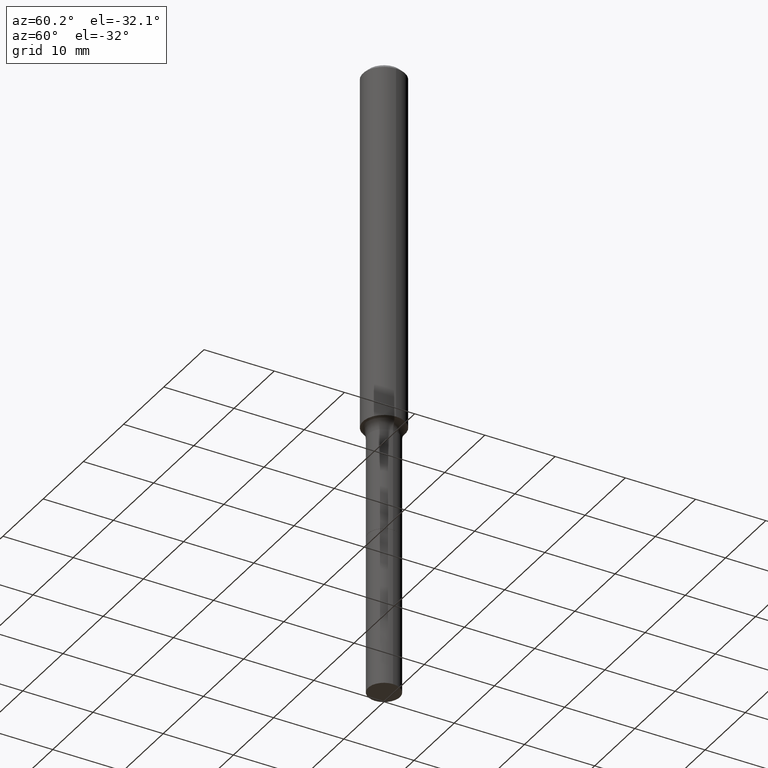
[diagram: clean part render]
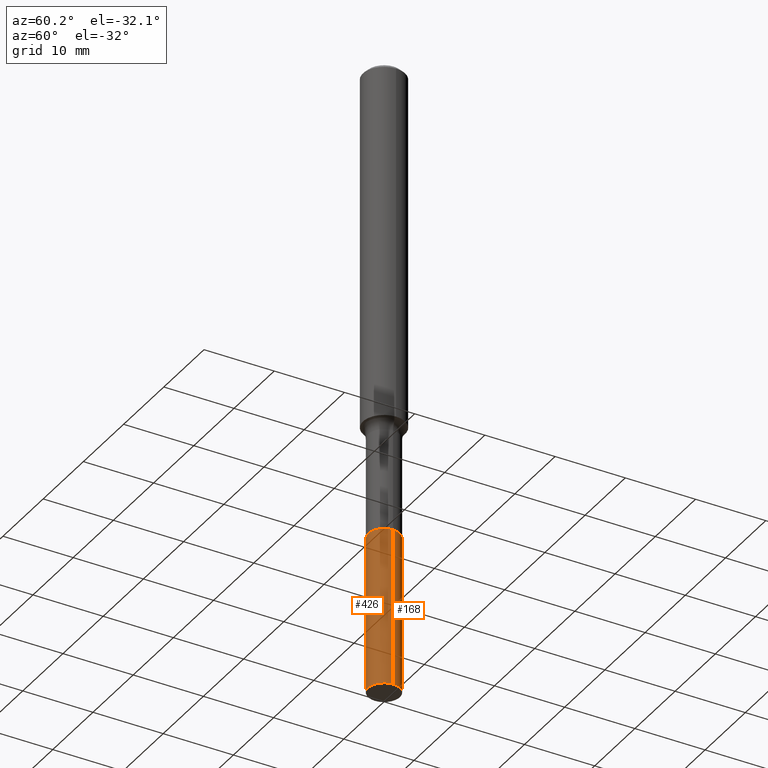
[diagram: same view with one multi-face feature highlighted, each face labeled with its STEP entity id]
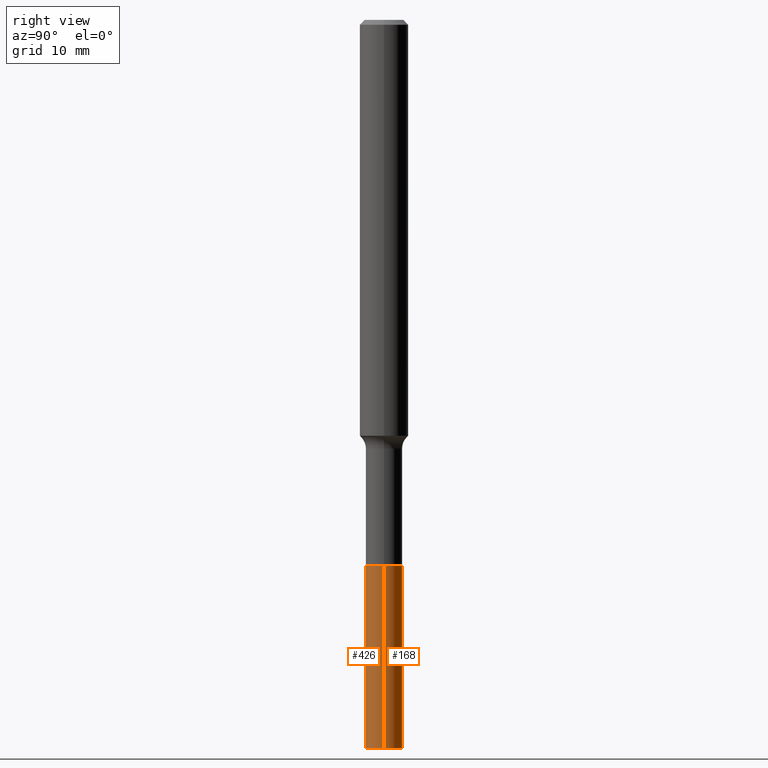
[diagram: same view with one multi-face feature highlighted, each face labeled with its STEP entity id]
A machine part, auxiliary view. The highlighted faces form ONE feature: a constant-radius fillet chain: 2 tangent blend faces with common blend radius 2.2504 mm. The faces share edges in the B-rep.
A second angle (right view) of the same feature is appended — it is thin or edge-on in the first view.
Their STEP definitions:
[1] entity #168 (Cylinder):
#2 = EDGE_CURVE ( 'NONE', #162, #242, #122, .T. ) ;
#7 = ORIENTED_EDGE ( 'NONE', *, *, #337, .T. ) ;
#8 = CARTESIAN_POINT ( 'NONE',  ( 0.08859999999999999820, -9.896603854950894217E-15, -2.657300000000000217 ) ) ;
#26 = CARTESIAN_POINT ( 'NONE',  ( -0.08860000000000010922, -8.648372497824442414E-15, -2.657300000000000217 ) ) ;
#28 = LINE ( 'NONE', #394, #478 ) ;
#73 = CARTESIAN_POINT ( 'NONE',  ( -0.08860000000000022025, -1.019509873093195295E-14, -3.543299999999999894 ) ) ;
#90 = DIRECTION ( 'NONE',  ( 1.000000000000000000, -6.982962677686260400E-15, 0.000000000000000000 ) ) ;
#100 = AXIS2_PLACEMENT_3D ( 'NONE', #234, #160, #392 ) ;
#109 = CARTESIAN_POINT ( 'NONE',  ( 8.665029620955794069E-29, -1.237136582792291707E-14, -3.543299999999999894 ) ) ;
#111 = ORIENTED_EDGE ( 'NONE', *, *, #510, .F. ) ;
#122 = CIRCLE ( 'NONE', #100, 0.08859999999999999820 ) ;
#129 = VERTEX_POINT ( 'NONE', #334 ) ;
#139 = CARTESIAN_POINT ( 'NONE',  ( 6.498344258675763520E-29, -9.277913361707891265E-15, -2.657300000000000217 ) ) ;
#142 = DIRECTION ( 'NONE',  ( 1.000000000000000000, -6.982962677686273810E-15, 0.000000000000000000 ) ) ;
#146 = AXIS2_PLACEMENT_3D ( 'NONE', #139, #376, #90 ) ;
#160 = DIRECTION ( 'NONE',  ( -2.445468806185136597E-29, 3.491481338843145583E-15, 1.000000000000000000 ) ) ;
#162 = VERTEX_POINT ( 'NONE', #8 ) ;
#168 = ADVANCED_FACE ( 'NONE', ( #411 ), #289, .T. ) ;
#179 = DIRECTION ( 'NONE',  ( -2.445468806185136877E-29, 3.491481338843145188E-15, 1.000000000000000000 ) ) ;
#182 = DIRECTION ( 'NONE',  ( -2.445468806185136597E-29, 3.491481338843145583E-15, 1.000000000000000000 ) ) ;
#234 = CARTESIAN_POINT ( 'NONE',  ( 6.498344258675763520E-29, -9.277913361707891265E-15, -2.657300000000000217 ) ) ;
#242 = VERTEX_POINT ( 'NONE', #260 ) ;
#251 = CIRCLE ( 'NONE', #370, 0.08860000000000022025 ) ;
#254 = EDGE_CURVE ( 'NONE', #129, #351, #251, .T. ) ;
#260 = CARTESIAN_POINT ( 'NONE',  ( -0.08859999999999999820, -1.019509873093195453E-14, -2.657300000000000217 ) ) ;
#289 = CYLINDRICAL_SURFACE ( 'NONE', #146, 0.08860000000000010922 ) ;
#303 = EDGE_LOOP ( 'NONE', ( #305, #7, #339, #111 ) ) ;
#305 = ORIENTED_EDGE ( 'NONE', *, *, #254, .T. ) ;
#334 = CARTESIAN_POINT ( 'NONE',  ( 0.08860000000000022025, -1.299005632116592160E-14, -3.543299999999999894 ) ) ;
#337 = EDGE_CURVE ( 'NONE', #351, #242, #386, .T. ) ;
#339 = ORIENTED_EDGE ( 'NONE', *, *, #2, .F. ) ;
#343 = VECTOR ( 'NONE', #179, 39.37007874015748143 ) ;
#351 = VERTEX_POINT ( 'NONE', #73 ) ;
#370 = AXIS2_PLACEMENT_3D ( 'NONE', #109, #182, #142 ) ;
#376 = DIRECTION ( 'NONE',  ( -2.445468806185136597E-29, 3.491481338843145583E-15, 1.000000000000000000 ) ) ;
#386 = LINE ( 'NONE', #26, #343 ) ;
#392 = DIRECTION ( 'NONE',  ( 1.000000000000000000, -6.982962677686269077E-15, 0.000000000000000000 ) ) ;
#394 = CARTESIAN_POINT ( 'NONE',  ( 0.08860000000000010922, -9.896603854950894217E-15, -2.657300000000000217 ) ) ;
#399 = DIRECTION ( 'NONE',  ( -2.445468806185136877E-29, 3.491481338843145188E-15, 1.000000000000000000 ) ) ;
#411 = FACE_OUTER_BOUND ( 'NONE', #303, .T. ) ;
#478 = VECTOR ( 'NONE', #399, 39.37007874015748143 ) ;
#510 = EDGE_CURVE ( 'NONE', #129, #162, #28, .T. ) ;
[2] entity #426 (Cylinder):
#8 = CARTESIAN_POINT ( 'NONE',  ( 0.08859999999999999820, -9.896603854950894217E-15, -2.657300000000000217 ) ) ;
#26 = CARTESIAN_POINT ( 'NONE',  ( -0.08860000000000010922, -8.648372497824442414E-15, -2.657300000000000217 ) ) ;
#28 = LINE ( 'NONE', #394, #478 ) ;
#73 = CARTESIAN_POINT ( 'NONE',  ( -0.08860000000000022025, -1.019509873093195295E-14, -3.543299999999999894 ) ) ;
#86 = ORIENTED_EDGE ( 'NONE', *, *, #510, .T. ) ;
#124 = CARTESIAN_POINT ( 'NONE',  ( 8.665029620955794069E-29, -1.237136582792291707E-14, -3.543299999999999894 ) ) ;
#129 = VERTEX_POINT ( 'NONE', #334 ) ;
#150 = ORIENTED_EDGE ( 'NONE', *, *, #337, .F. ) ;
#156 = EDGE_LOOP ( 'NONE', ( #150, #166, #86, #230 ) ) ;
#162 = VERTEX_POINT ( 'NONE', #8 ) ;
#166 = ORIENTED_EDGE ( 'NONE', *, *, #365, .T. ) ;
#179 = DIRECTION ( 'NONE',  ( -2.445468806185136877E-29, 3.491481338843145188E-15, 1.000000000000000000 ) ) ;
#191 = DIRECTION ( 'NONE',  ( -2.445468806185136597E-29, 3.491481338843145583E-15, 1.000000000000000000 ) ) ;
#230 = ORIENTED_EDGE ( 'NONE', *, *, #268, .F. ) ;
#240 = CARTESIAN_POINT ( 'NONE',  ( 6.498344258675763520E-29, -9.277913361707891265E-15, -2.657300000000000217 ) ) ;
#242 = VERTEX_POINT ( 'NONE', #260 ) ;
#260 = CARTESIAN_POINT ( 'NONE',  ( -0.08859999999999999820, -1.019509873093195453E-14, -2.657300000000000217 ) ) ;
#268 = EDGE_CURVE ( 'NONE', #242, #162, #503, .T. ) ;
#334 = CARTESIAN_POINT ( 'NONE',  ( 0.08860000000000022025, -1.299005632116592160E-14, -3.543299999999999894 ) ) ;
#337 = EDGE_CURVE ( 'NONE', #351, #242, #386, .T. ) ;
#343 = VECTOR ( 'NONE', #179, 39.37007874015748143 ) ;
#351 = VERTEX_POINT ( 'NONE', #73 ) ;
#354 = AXIS2_PLACEMENT_3D ( 'NONE', #124, #358, #431 ) ;
#356 = CYLINDRICAL_SURFACE ( 'NONE', #446, 0.08860000000000010922 ) ;
#358 = DIRECTION ( 'NONE',  ( -2.445468806185136597E-29, 3.491481338843145583E-15, 1.000000000000000000 ) ) ;
#365 = EDGE_CURVE ( 'NONE', #351, #129, #420, .T. ) ;
#386 = LINE ( 'NONE', #26, #343 ) ;
#391 = FACE_OUTER_BOUND ( 'NONE', #156, .T. ) ;
#394 = CARTESIAN_POINT ( 'NONE',  ( 0.08860000000000010922, -9.896603854950894217E-15, -2.657300000000000217 ) ) ;
#399 = DIRECTION ( 'NONE',  ( -2.445468806185136877E-29, 3.491481338843145188E-15, 1.000000000000000000 ) ) ;
#420 = CIRCLE ( 'NONE', #354, 0.08860000000000022025 ) ;
#426 = ADVANCED_FACE ( 'NONE', ( #391 ), #356, .T. ) ;
#431 = DIRECTION ( 'NONE',  ( 1.000000000000000000, -6.982962677686273810E-15, 0.000000000000000000 ) ) ;
#446 = AXIS2_PLACEMENT_3D ( 'NONE', #240, #191, #475 ) ;
#457 = CARTESIAN_POINT ( 'NONE',  ( 6.498344258675763520E-29, -9.277913361707891265E-15, -2.657300000000000217 ) ) ;
#468 = AXIS2_PLACEMENT_3D ( 'NONE', #457, #501, #506 ) ;
#475 = DIRECTION ( 'NONE',  ( 1.000000000000000000, -6.982962677686260400E-15, 0.000000000000000000 ) ) ;
#478 = VECTOR ( 'NONE', #399, 39.37007874015748143 ) ;
#501 = DIRECTION ( 'NONE',  ( -2.445468806185136597E-29, 3.491481338843145583E-15, 1.000000000000000000 ) ) ;
#503 = CIRCLE ( 'NONE', #468, 0.08859999999999999820 ) ;
#506 = DIRECTION ( 'NONE',  ( 1.000000000000000000, -6.982962677686269077E-15, 0.000000000000000000 ) ) ;
#510 = EDGE_CURVE ( 'NONE', #129, #162, #28, .T. ) ;